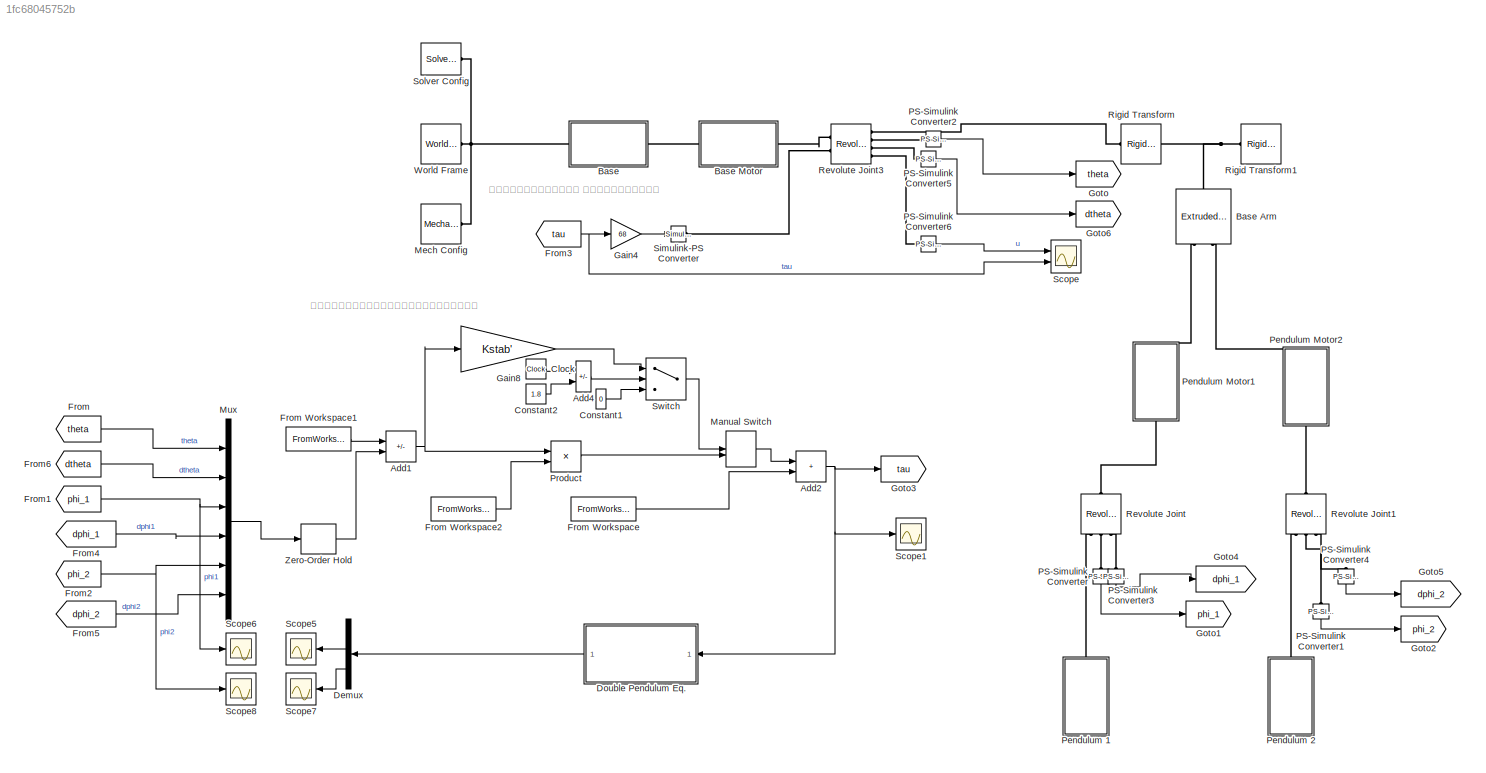
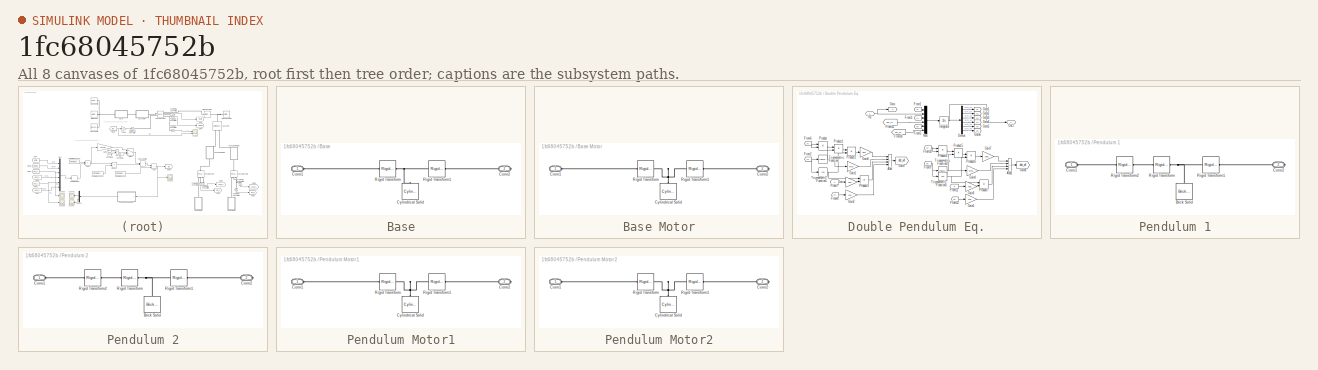
[diagram: thumbnail index - all 8 canvases of the model, root first then tree order]
MODEL slx_1fc68045752b
KIND model
CONFIG AbsTol = auto
CONFIG EnableMultiTasking = off
CONFIG FixedStep = 0.0001
CONFIG MaxStep = auto
CONFIG MinStep = auto
CONFIG RelTol = 1e-3
CONFIG SampleTimeConstraint = Unconstrained
CONFIG SolverName = FixedStepAuto
CONFIG StartTime = 0.0
CONFIG StopTime = 10
BLOCK [Sum] Add1
  IconShape = rectangular
  Inputs = +-
  Ports = [2, 1]
BLOCK [Sum] Add2
  IconShape = rectangular
  Ports = [2, 1]
BLOCK [Sum] Add4
  IconShape = rectangular
  Inputs = +-
  Ports = [2, 1]
BLOCK [SubSystem] Base
  Ports = [0, 0, 0, 0, 0, 1, 1]
BLOCK [Reference] Base Arm  REF=sm_lib/Body Elements/Extruded Solid
  NameLocation = right
  Ports = [0, 0, 0, 0, 0, 2, 1]
  SourceBlock = sm_lib/Body Elements/Extruded Solid
  SourceType = Extruded Solid
BLOCK [SubSystem] Base Motor
  Ports = [0, 0, 0, 0, 0, 1, 1]
BLOCK [PMIOPort] Base Motor/Conn1
  Side = Left
BLOCK [PMIOPort] Base Motor/Conn2
  Port = 2
  Side = Right
BLOCK [Reference] Base Motor/Cylindrical Solid  REF=sm_lib/Body Elements/Cylindrical Solid
  NameLocation = right
  Ports = [0, 0, 0, 0, 0, 0, 1]
  SourceBlock = sm_lib/Body Elements/Cylindrical Solid
  SourceType = Cylindrical Solid
BLOCK [Reference] Base Motor/Rigid Transform  REF=sm_lib/Frames and
Transforms/Rigid
Transform
  NameLocation = top
  Ports = [0, 0, 0, 0, 0, 1, 1]
  SourceBlock = sm_lib/Frames and\nTransforms/Rigid\nTransform
  SourceType = Rigid\nTransform
BLOCK [Reference] Base Motor/Rigid Transform1  REF=sm_lib/Frames and
Transforms/Rigid
Transform
  Ports = [0, 0, 0, 0, 0, 1, 1]
  SourceBlock = sm_lib/Frames and\nTransforms/Rigid\nTransform
  SourceType = Rigid\nTransform
BLOCK [PMIOPort] Base/Conn1
  Side = Left
BLOCK [PMIOPort] Base/Conn2
  Port = 2
  Side = Right
BLOCK [Reference] Base/Cylindrical Solid  REF=sm_lib/Body Elements/Cylindrical Solid
  NameLocation = right
  Ports = [0, 0, 0, 0, 0, 0, 1]
  SourceBlock = sm_lib/Body Elements/Cylindrical Solid
  SourceType = Cylindrical Solid
BLOCK [Reference] Base/Rigid Transform  REF=sm_lib/Frames and
Transforms/Rigid
Transform
  NameLocation = top
  Ports = [0, 0, 0, 0, 0, 1, 1]
  SourceBlock = sm_lib/Frames and\nTransforms/Rigid\nTransform
  SourceType = Rigid\nTransform
BLOCK [Reference] Base/Rigid Transform1  REF=sm_lib/Frames and
Transforms/Rigid
Transform
  Ports = [0, 0, 0, 0, 0, 1, 1]
  SourceBlock = sm_lib/Frames and\nTransforms/Rigid\nTransform
  SourceType = Rigid\nTransform
BLOCK [Clock] Clock
BLOCK [Constant] Constant1
  Value = 0
BLOCK [Constant] Constant2
  Value = 1.8
BLOCK [Demux] Demux
  NameLocation = top
  Outputs = 6
  Ports = [1, 6]
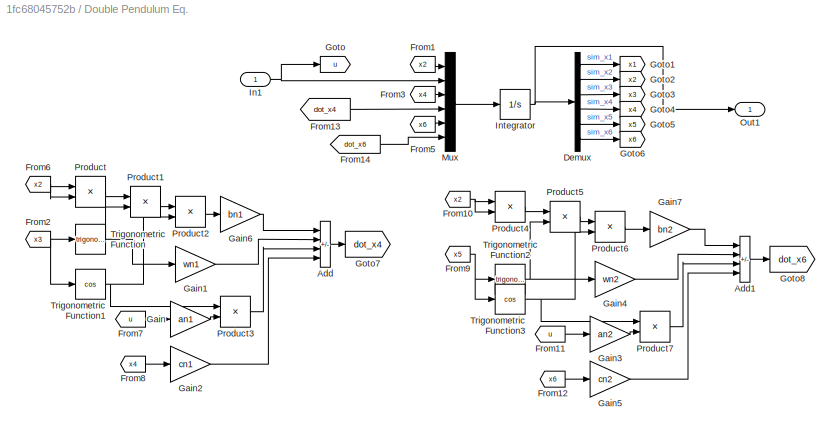
BLOCK [SubSystem] Double Pendulum Eq.
  NameLocation = top
  Ports = [1, 1]
BLOCK [Sum] Double Pendulum Eq./Add
  IconShape = rectangular
  Inputs = +---
  Ports = [4, 1]
BLOCK [Sum] Double Pendulum Eq./Add1
  IconShape = rectangular
  Inputs = +---
  Ports = [4, 1]
BLOCK [Demux] Double Pendulum Eq./Demux
  Outputs = 6
  Ports = [1, 6]
BLOCK [From] Double Pendulum Eq./From1
  GotoTag = x2
BLOCK [From] Double Pendulum Eq./From10
  GotoTag = x2
BLOCK [From] Double Pendulum Eq./From11
  GotoTag = u
BLOCK [From] Double Pendulum Eq./From12
  GotoTag = x6
BLOCK [From] Double Pendulum Eq./From13
  GotoTag = dot_x4
BLOCK [From] Double Pendulum Eq./From14
  GotoTag = dot_x6
BLOCK [From] Double Pendulum Eq./From2
  GotoTag = x3
BLOCK [From] Double Pendulum Eq./From3
  GotoTag = x4
BLOCK [From] Double Pendulum Eq./From5
  GotoTag = x6
BLOCK [From] Double Pendulum Eq./From6
  GotoTag = x2
BLOCK [From] Double Pendulum Eq./From7
  GotoTag = u
BLOCK [From] Double Pendulum Eq./From8
  GotoTag = x4
BLOCK [From] Double Pendulum Eq./From9
  GotoTag = x5
BLOCK [Gain] Double Pendulum Eq./Gain
  Gain = an1
BLOCK [Gain] Double Pendulum Eq./Gain1
  Gain = wn1
BLOCK [Gain] Double Pendulum Eq./Gain2
  Gain = cn1
BLOCK [Gain] Double Pendulum Eq./Gain3
  Gain = an2
BLOCK [Gain] Double Pendulum Eq./Gain4
  Gain = wn2
BLOCK [Gain] Double Pendulum Eq./Gain5
  Gain = cn2
BLOCK [Gain] Double Pendulum Eq./Gain6
  Gain = bn1
BLOCK [Gain] Double Pendulum Eq./Gain7
  Gain = bn2
BLOCK [Goto] Double Pendulum Eq./Goto
  GotoTag = u
BLOCK [Goto] Double Pendulum Eq./Goto1
  GotoTag = x1
BLOCK [Goto] Double Pendulum Eq./Goto2
  GotoTag = x2
BLOCK [Goto] Double Pendulum Eq./Goto3
  GotoTag = x3
BLOCK [Goto] Double Pendulum Eq./Goto4
  GotoTag = x4
BLOCK [Goto] Double Pendulum Eq./Goto5
  GotoTag = x5
BLOCK [Goto] Double Pendulum Eq./Goto6
  GotoTag = x6
BLOCK [Goto] Double Pendulum Eq./Goto7
  GotoTag = dot_x4
BLOCK [Goto] Double Pendulum Eq./Goto8
  GotoTag = dot_x6
BLOCK [Inport] Double Pendulum Eq./In1
BLOCK [Integrator] Double Pendulum Eq./Integrator
  InitialCondition = [0 0 0 0 0 0]
  Ports = [1, 1]
BLOCK [Mux] Double Pendulum Eq./Mux
  DisplayOption = bar
  Inputs = 6
  Ports = [6, 1]
BLOCK [Outport] Double Pendulum Eq./Out1
BLOCK [Product] Double Pendulum Eq./Product
  Ports = [2, 1]
BLOCK [Product] Double Pendulum Eq./Product1
  Ports = [2, 1]
BLOCK [Product] Double Pendulum Eq./Product2
  Ports = [2, 1]
BLOCK [Product] Double Pendulum Eq./Product3
  Ports = [2, 1]
BLOCK [Product] Double Pendulum Eq./Product4
  Ports = [2, 1]
BLOCK [Product] Double Pendulum Eq./Product5
  Ports = [2, 1]
BLOCK [Product] Double Pendulum Eq./Product6
  Ports = [2, 1]
BLOCK [Product] Double Pendulum Eq./Product7
  Ports = [2, 1]
BLOCK [Trigonometry] Double Pendulum Eq./Trigonometric Function
  Ports = [1, 1]
BLOCK [Trigonometry] Double Pendulum Eq./Trigonometric Function1
  Operator = cos
  Ports = [1, 1]
BLOCK [Trigonometry] Double Pendulum Eq./Trigonometric Function2
  Ports = [1, 1]
BLOCK [Trigonometry] Double Pendulum Eq./Trigonometric Function3
  Operator = cos
  Ports = [1, 1]
BLOCK [From] From
  GotoTag = theta
BLOCK [FromWorkspace] From Workspace
  SampleTime = 0.01
  VariableName = u_opt_ts
BLOCK [FromWorkspace] From Workspace1
  OutputAfterFinalValue = Holding final value
  SampleTime = dt
  VariableName = x_opt_ts
BLOCK [FromWorkspace] From Workspace2
  OutputAfterFinalValue = Holding final value
  SampleTime = dt
  VariableName = K_ts
BLOCK [From] From1
  GotoTag = phi_1
BLOCK [From] From2
  GotoTag = phi_2
BLOCK [From] From3
  GotoTag = tau
BLOCK [From] From4
  GotoTag = dphi_1
BLOCK [From] From5
  GotoTag = dphi_2
BLOCK [From] From6
  GotoTag = dtheta
BLOCK [Gain] Gain4
  Gain = 68
BLOCK [Gain] Gain8
  Gain = Kstab'
  Multiplication = Matrix(K*u) (u vector)
BLOCK [Goto] Goto
  GotoTag = theta
BLOCK [Goto] Goto1
  GotoTag = phi_1
BLOCK [Goto] Goto2
  GotoTag = phi_2
BLOCK [Goto] Goto3
  GotoTag = tau
BLOCK [Goto] Goto4
  GotoTag = dphi_1
BLOCK [Goto] Goto5
  GotoTag = dphi_2
BLOCK [Goto] Goto6
  GotoTag = dtheta
BLOCK [ManualSwitch] Manual Switch
  CurrentSetting = 0
BLOCK [Reference] Mech Config  REF=sm_lib/Utilities/Mechanism
Configuration
  Ports = [0, 0, 0, 0, 0, 0, 1]
  SourceBlock = sm_lib/Utilities/Mechanism\nConfiguration
  SourceType = Mechanism\nConfiguration
BLOCK [Mux] Mux
  DisplayOption = bar
  Inputs = 6
  Ports = [6, 1]
BLOCK [Reference] PS-Simulink Converter  REF=nesl_utility/PS-Simulink
Converter
  NameLocation = left
  Ports = [0, 1, 0, 0, 0, 1]
  SourceBlock = nesl_utility/PS-Simulink\nConverter
  SourceType = PS-Simulink\nConverter
BLOCK [Reference] PS-Simulink Converter1  REF=nesl_utility/PS-Simulink
Converter
  NameLocation = left
  Ports = [0, 1, 0, 0, 0, 1]
  SourceBlock = nesl_utility/PS-Simulink\nConverter
  SourceType = PS-Simulink\nConverter
BLOCK [Reference] PS-Simulink Converter2  REF=nesl_utility/PS-Simulink
Converter
  Ports = [0, 1, 0, 0, 0, 1]
  SourceBlock = nesl_utility/PS-Simulink\nConverter
  SourceType = PS-Simulink\nConverter
BLOCK [Reference] PS-Simulink Converter3  REF=nesl_utility/PS-Simulink
Converter
  NameLocation = left
  Ports = [0, 1, 0, 0, 0, 1]
  SourceBlock = nesl_utility/PS-Simulink\nConverter
  SourceType = PS-Simulink\nConverter
BLOCK [Reference] PS-Simulink Converter4  REF=nesl_utility/PS-Simulink
Converter
  NameLocation = left
  Ports = [0, 1, 0, 0, 0, 1]
  SourceBlock = nesl_utility/PS-Simulink\nConverter
  SourceType = PS-Simulink\nConverter
BLOCK [Reference] PS-Simulink Converter5  REF=nesl_utility/PS-Simulink
Converter
  Ports = [0, 1, 0, 0, 0, 1]
  SourceBlock = nesl_utility/PS-Simulink\nConverter
  SourceType = PS-Simulink\nConverter
BLOCK [Reference] PS-Simulink Converter6  REF=nesl_utility/PS-Simulink
Converter
  Ports = [0, 1, 0, 0, 0, 1]
  SourceBlock = nesl_utility/PS-Simulink\nConverter
  SourceType = PS-Simulink\nConverter
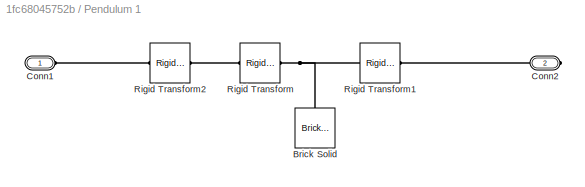
BLOCK [SubSystem] Pendulum 1
  NameLocation = left
  Ports = [0, 0, 0, 0, 0, 1, 1]
BLOCK [Reference] Pendulum 1/Brick Solid  REF=sm_lib/Body Elements/Brick Solid
  NameLocation = right
  Ports = [0, 0, 0, 0, 0, 0, 1]
  SourceBlock = sm_lib/Body Elements/Brick Solid
  SourceType = Brick Solid
BLOCK [PMIOPort] Pendulum 1/Conn1
  Side = Left
BLOCK [PMIOPort] Pendulum 1/Conn2
  Port = 2
  Side = Right
BLOCK [Reference] Pendulum 1/Rigid Transform  REF=sm_lib/Frames and
Transforms/Rigid
Transform
  NameLocation = top
  Ports = [0, 0, 0, 0, 0, 1, 1]
  SourceBlock = sm_lib/Frames and\nTransforms/Rigid\nTransform
  SourceType = Rigid\nTransform
BLOCK [Reference] Pendulum 1/Rigid Transform1  REF=sm_lib/Frames and
Transforms/Rigid
Transform
  Ports = [0, 0, 0, 0, 0, 1, 1]
  SourceBlock = sm_lib/Frames and\nTransforms/Rigid\nTransform
  SourceType = Rigid\nTransform
BLOCK [Reference] Pendulum 1/Rigid Transform2  REF=sm_lib/Frames and
Transforms/Rigid
Transform
  NameLocation = top
  Ports = [0, 0, 0, 0, 0, 1, 1]
  SourceBlock = sm_lib/Frames and\nTransforms/Rigid\nTransform
  SourceType = Rigid\nTransform
BLOCK [SubSystem] Pendulum 2
  NameLocation = left
  Ports = [0, 0, 0, 0, 0, 1, 1]
BLOCK [Reference] Pendulum 2/Brick Solid  REF=sm_lib/Body Elements/Brick Solid
  NameLocation = right
  Ports = [0, 0, 0, 0, 0, 0, 1]
  SourceBlock = sm_lib/Body Elements/Brick Solid
  SourceType = Brick Solid
BLOCK [PMIOPort] Pendulum 2/Conn1
  Side = Left
BLOCK [PMIOPort] Pendulum 2/Conn2
  Port = 2
  Side = Right
BLOCK [Reference] Pendulum 2/Rigid Transform  REF=sm_lib/Frames and
Transforms/Rigid
Transform
  NameLocation = top
  Ports = [0, 0, 0, 0, 0, 1, 1]
  SourceBlock = sm_lib/Frames and\nTransforms/Rigid\nTransform
  SourceType = Rigid\nTransform
BLOCK [Reference] Pendulum 2/Rigid Transform1  REF=sm_lib/Frames and
Transforms/Rigid
Transform
  Ports = [0, 0, 0, 0, 0, 1, 1]
  SourceBlock = sm_lib/Frames and\nTransforms/Rigid\nTransform
  SourceType = Rigid\nTransform
BLOCK [Reference] Pendulum 2/Rigid Transform2  REF=sm_lib/Frames and
Transforms/Rigid
Transform
  NameLocation = top
  Ports = [0, 0, 0, 0, 0, 1, 1]
  SourceBlock = sm_lib/Frames and\nTransforms/Rigid\nTransform
  SourceType = Rigid\nTransform
BLOCK [SubSystem] Pendulum Motor1
  NameLocation = left
  Ports = [0, 0, 0, 0, 0, 1, 1]
BLOCK [PMIOPort] Pendulum Motor1/Conn1
  Side = Left
BLOCK [PMIOPort] Pendulum Motor1/Conn2
  Port = 2
  Side = Right
BLOCK [Reference] Pendulum Motor1/Cylindrical Solid  REF=sm_lib/Body Elements/Cylindrical Solid
  NameLocation = right
  Ports = [0, 0, 0, 0, 0, 0, 1]
  SourceBlock = sm_lib/Body Elements/Cylindrical Solid
  SourceType = Cylindrical Solid
BLOCK [Reference] Pendulum Motor1/Rigid Transform  REF=sm_lib/Frames and
Transforms/Rigid
Transform
  NameLocation = top
  Ports = [0, 0, 0, 0, 0, 1, 1]
  SourceBlock = sm_lib/Frames and\nTransforms/Rigid\nTransform
  SourceType = Rigid\nTransform
BLOCK [Reference] Pendulum Motor1/Rigid Transform1  REF=sm_lib/Frames and
Transforms/Rigid
Transform
  Ports = [0, 0, 0, 0, 0, 1, 1]
  SourceBlock = sm_lib/Frames and\nTransforms/Rigid\nTransform
  SourceType = Rigid\nTransform
BLOCK [SubSystem] Pendulum Motor2
  NameLocation = left
  Ports = [0, 0, 0, 0, 0, 1, 1]
BLOCK [PMIOPort] Pendulum Motor2/Conn1
  Side = Left
BLOCK [PMIOPort] Pendulum Motor2/Conn2
  Port = 2
  Side = Right
BLOCK [Reference] Pendulum Motor2/Cylindrical Solid  REF=sm_lib/Body Elements/Cylindrical Solid
  NameLocation = right
  Ports = [0, 0, 0, 0, 0, 0, 1]
  SourceBlock = sm_lib/Body Elements/Cylindrical Solid
  SourceType = Cylindrical Solid
BLOCK [Reference] Pendulum Motor2/Rigid Transform  REF=sm_lib/Frames and
Transforms/Rigid
Transform
  NameLocation = top
  Ports = [0, 0, 0, 0, 0, 1, 1]
  SourceBlock = sm_lib/Frames and\nTransforms/Rigid\nTransform
  SourceType = Rigid\nTransform
BLOCK [Reference] Pendulum Motor2/Rigid Transform1  REF=sm_lib/Frames and
Transforms/Rigid
Transform
  Ports = [0, 0, 0, 0, 0, 1, 1]
  SourceBlock = sm_lib/Frames and\nTransforms/Rigid\nTransform
  SourceType = Rigid\nTransform
BLOCK [Product] Product
  Multiplication = Matrix(*)
  Ports = [2, 1]
BLOCK [Reference] Revolute Joint  REF=sm_lib/Joints/Revolute Joint
  NameLocation = left
  Ports = [0, 0, 0, 0, 0, 1, 3]
  SourceBlock = sm_lib/Joints/Revolute Joint
  SourceType = Revolute Joint
BLOCK [Reference] Revolute Joint1  REF=sm_lib/Joints/Revolute Joint
  NameLocation = left
  Ports = [0, 0, 0, 0, 0, 1, 3]
  SourceBlock = sm_lib/Joints/Revolute Joint
  SourceType = Revolute Joint
BLOCK [Reference] Revolute Joint3  REF=sm_lib/Joints/Revolute Joint
  Ports = [0, 0, 0, 0, 0, 2, 4]
  SourceBlock = sm_lib/Joints/Revolute Joint
  SourceType = Revolute Joint
BLOCK [Reference] Rigid Transform  REF=sm_lib/Frames and
Transforms/Rigid
Transform
  NameLocation = top
  Ports = [0, 0, 0, 0, 0, 1, 1]
  SourceBlock = sm_lib/Frames and\nTransforms/Rigid\nTransform
  SourceType = Rigid\nTransform
BLOCK [Reference] Rigid Transform1  REF=sm_lib/Frames and
Transforms/Rigid
Transform
  Ports = [0, 0, 0, 0, 0, 1, 1]
  SourceBlock = sm_lib/Frames and\nTransforms/Rigid\nTransform
  SourceType = Rigid\nTransform
BLOCK [Scope] Scope
  Floating = off
  NumInputPorts = 2
  Ports = [2]
  ScopeSpecificationString = Simulink.scopes.TimeScopeBlockCfg('CurrentConfiguration', extmgr.ConfigurationSet(extmgr.Configuration('Core','General UI',true),extmgr.Configuration('Core','Source UI',true),extmgr.Configuration('Sources','WiredSimulink',true,'DataLoggingVariableName','ScopeData1'),extmgr.Configuration('Visuals','Time Domain',true,'SerializedDisplays',{struct('MinYLimReal','-66.46884','MaxYLimReal','50.92059','YL...<+1470ch>
BLOCK [Scope] Scope1
  Floating = off
  NumInputPorts = 1
  Ports = [1]
  ScopeSpecificationString = Simulink.scopes.TimeScopeBlockCfg('CurrentConfiguration', extmgr.ConfigurationSet(extmgr.Configuration('Core','General UI',true),extmgr.Configuration('Core','Source UI',true),extmgr.Configuration('Sources','WiredSimulink',true,'DataLoggingVariableName','ScopeData1'),extmgr.Configuration('Visuals','Time Domain',true,'SerializedDisplays',{struct('MinYLimReal','-51.69932','MaxYLimReal','45.54576','YL...<+1569ch>
BLOCK [Scope] Scope5
  Floating = off
  NameLocation = top
  NumInputPorts = 1
  Ports = [1]
  ScopeSpecificationString = Simulink.scopes.TimeScopeBlockCfg('CurrentConfiguration', extmgr.ConfigurationSet(extmgr.Configuration('Core','General UI',true),extmgr.Configuration('Core','Source UI',true),extmgr.Configuration('Sources','WiredSimulink',true,'DataLoggingVariableName','ScopeData1'),extmgr.Configuration('Visuals','Time Domain',true,'SerializedDisplays',{struct('MinYLimReal','-3.54029','MaxYLimReal','3.85831','YLab...<+1491ch>
BLOCK [Scope] Scope6
  Floating = off
  NumInputPorts = 1
  Ports = [1]
  ScopeSpecificationString = Simulink.scopes.TimeScopeBlockCfg('CurrentConfiguration', extmgr.ConfigurationSet(extmgr.Configuration('Core','General UI',true),extmgr.Configuration('Core','Source UI',true),extmgr.Configuration('Sources','WiredSimulink',true,'DataLoggingVariableName','ScopeData2'),extmgr.Configuration('Visuals','Time Domain',true,'SerializedDisplays',{struct('MinYLimReal','-3.2356','MaxYLimReal','3.80879','YLabe...<+1486ch>
BLOCK [Scope] Scope7
  Floating = off
  NameLocation = top
  NumInputPorts = 1
  Ports = [1]
  ScopeSpecificationString = Simulink.scopes.TimeScopeBlockCfg('CurrentConfiguration', extmgr.ConfigurationSet(extmgr.Configuration('Core','General UI',true),extmgr.Configuration('Core','Source UI',true),extmgr.Configuration('Sources','WiredSimulink',true,'DataLoggingVariableName','ScopeData1'),extmgr.Configuration('Visuals','Time Domain',true,'SerializedDisplays',{struct('MinYLimReal','-3.26727','MaxYLimReal','3.85594','YLab...<+1491ch>
BLOCK [Scope] Scope8
  Floating = off
  NumInputPorts = 1
  Ports = [1]
  ScopeSpecificationString = Simulink.scopes.TimeScopeBlockCfg('CurrentConfiguration', extmgr.ConfigurationSet(extmgr.Configuration('Core','General UI',true),extmgr.Configuration('Core','Source UI',true),extmgr.Configuration('Sources','WiredSimulink',true,'DataLoggingVariableName','ScopeData2'),extmgr.Configuration('Visuals','Time Domain',true,'SerializedDisplays',{struct('MinYLimReal','-3.24544','MaxYLimReal','3.92624','YLab...<+1488ch>
BLOCK [Reference] Simulink-PS Converter  REF=nesl_utility/Simulink-PS
Converter
  Ports = [1, 0, 0, 0, 0, 0, 1]
  SourceBlock = nesl_utility/Simulink-PS\nConverter
  SourceType = Simulink-PS\nConverter
BLOCK [Reference] Solver Config  REF=nesl_utility/Solver
Configuration
  Ports = [0, 0, 0, 0, 0, 0, 1]
  SourceBlock = nesl_utility/Solver\nConfiguration
  SourceType = Solver\nConfiguration
BLOCK [Switch] Switch
  Criteria = u2 > Threshold
  InputSameDT = off
  SaturateOnIntegerOverflow = off
BLOCK [Reference] World Frame  REF=sm_lib/Frames and
Transforms/World Frame
  Ports = [0, 0, 0, 0, 0, 0, 1]
  SourceBlock = sm_lib/Frames and\nTransforms/World Frame
  SourceType = World Frame
BLOCK [ZeroOrderHold] Zero-Order Hold
  SampleTime = dt
ANNOTATION (root): アーム角加速度≒印加トルク と調整するためのゲイン
ANNOTATION (root): 振り上げ後に固定のゲインを使う場合。動作確認用。
NET Add1:1 -> Gain8:1, Product:1
NET Add2:1 -> Double Pendulum Eq.:1, Goto3:1, Scope1:1
LINE Add4:1 -> Switch:2
LINE Clock:1 -> Add4:1
LINE Constant1:1 -> Switch:3
LINE Constant2:1 -> Add4:2
LINE Demux:3 -> Scope5:1
LINE Demux:5 -> Scope7:1
LINE Double Pendulum Eq./Add1:1 -> Double Pendulum Eq./Goto8:1
LINE Double Pendulum Eq./Add:1 -> Double Pendulum Eq./Goto7:1
LINE Double Pendulum Eq./Demux:1 -> Double Pendulum Eq./Goto1:1
LINE Double Pendulum Eq./Demux:2 -> Double Pendulum Eq./Goto2:1
LINE Double Pendulum Eq./Demux:3 -> Double Pendulum Eq./Goto3:1
LINE Double Pendulum Eq./Demux:4 -> Double Pendulum Eq./Goto4:1
LINE Double Pendulum Eq./Demux:5 -> Double Pendulum Eq./Goto5:1
LINE Double Pendulum Eq./Demux:6 -> Double Pendulum Eq./Goto6:1
NET Double Pendulum Eq./From10:1 -> Double Pendulum Eq./Product4:1, Double Pendulum Eq./Product4:2
LINE Double Pendulum Eq./From11:1 -> Double Pendulum Eq./Gain3:1
LINE Double Pendulum Eq./From12:1 -> Double Pendulum Eq./Gain5:1
LINE Double Pendulum Eq./From13:1 -> Double Pendulum Eq./Mux:4
LINE Double Pendulum Eq./From14:1 -> Double Pendulum Eq./Mux:6
LINE Double Pendulum Eq./From1:1 -> Double Pendulum Eq./Mux:1
NET Double Pendulum Eq./From2:1 -> Double Pendulum Eq./Trigonometric Function1:1, Double Pendulum Eq./Trigonometric Function:1
LINE Double Pendulum Eq./From3:1 -> Double Pendulum Eq./Mux:3
LINE Double Pendulum Eq./From5:1 -> Double Pendulum Eq./Mux:5
NET Double Pendulum Eq./From6:1 -> Double Pendulum Eq./Product:1, Double Pendulum Eq./Product:2
LINE Double Pendulum Eq./From7:1 -> Double Pendulum Eq./Gain:1
LINE Double Pendulum Eq./From8:1 -> Double Pendulum Eq./Gain2:1
NET Double Pendulum Eq./From9:1 -> Double Pendulum Eq./Trigonometric Function2:1, Double Pendulum Eq./Trigonometric Function3:1
LINE Double Pendulum Eq./Gain1:1 -> Double Pendulum Eq./Add:2
LINE Double Pendulum Eq./Gain2:1 -> Double Pendulum Eq./Add:4
LINE Double Pendulum Eq./Gain3:1 -> Double Pendulum Eq./Product7:2
LINE Double Pendulum Eq./Gain4:1 -> Double Pendulum Eq./Add1:2
LINE Double Pendulum Eq./Gain5:1 -> Double Pendulum Eq./Add1:4
LINE Double Pendulum Eq./Gain6:1 -> Double Pendulum Eq./Add:1
LINE Double Pendulum Eq./Gain7:1 -> Double Pendulum Eq./Add1:1
LINE Double Pendulum Eq./Gain:1 -> Double Pendulum Eq./Product3:2
NET Double Pendulum Eq./In1:1 -> Double Pendulum Eq./Goto:1, Double Pendulum Eq./Mux:2
NET Double Pendulum Eq./Integrator:1 -> Double Pendulum Eq./Demux:1, Double Pendulum Eq./Out1:1
LINE Double Pendulum Eq./Mux:1 -> Double Pendulum Eq./Integrator:1
LINE Double Pendulum Eq./Product1:1 -> Double Pendulum Eq./Product2:1
LINE Double Pendulum Eq./Product2:1 -> Double Pendulum Eq./Gain6:1
LINE Double Pendulum Eq./Product3:1 -> Double Pendulum Eq./Add:3
LINE Double Pendulum Eq./Product4:1 -> Double Pendulum Eq./Product5:1
LINE Double Pendulum Eq./Product5:1 -> Double Pendulum Eq./Product6:1
LINE Double Pendulum Eq./Product6:1 -> Double Pendulum Eq./Gain7:1
LINE Double Pendulum Eq./Product7:1 -> Double Pendulum Eq./Add1:3
LINE Double Pendulum Eq./Product:1 -> Double Pendulum Eq./Product1:1
NET Double Pendulum Eq./Trigonometric Function1:1 -> Double Pendulum Eq./Product2:2, Double Pendulum Eq./Product3:1
NET Double Pendulum Eq./Trigonometric Function2:1 -> Double Pendulum Eq./Gain4:1, Double Pendulum Eq./Product5:2
NET Double Pendulum Eq./Trigonometric Function3:1 -> Double Pendulum Eq./Product6:2, Double Pendulum Eq./Product7:1
NET Double Pendulum Eq./Trigonometric Function:1 -> Double Pendulum Eq./Gain1:1, Double Pendulum Eq./Product1:2
LINE Double Pendulum Eq.:1 -> Demux:1
LINE From Workspace1:1 -> Add1:1
LINE From Workspace2:1 -> Product:2
LINE From Workspace:1 -> Add2:2
NET From1:1 -> Mux:3, Scope6:1
NET From2:1 -> Mux:5, Scope8:1
NET From3:1 -> Gain4:1, Scope:2
LINE From4:1 -> Mux:4
LINE From5:1 -> Mux:6
LINE From6:1 -> Mux:2
LINE From:1 -> Mux:1
LINE Gain4:1 -> Simulink-PS Converter:1
LINE Gain8:1 -> Switch:1
LINE Manual Switch:1 -> Add2:1
LINE Mux:1 -> Zero-Order Hold:1
LINE PS-Simulink Converter1:1 -> Goto2:1
LINE PS-Simulink Converter2:1 -> Goto:1
LINE PS-Simulink Converter3:1 -> Goto4:1
LINE PS-Simulink Converter4:1 -> Goto5:1
LINE PS-Simulink Converter5:1 -> Goto6:1
LINE PS-Simulink Converter6:1 -> Scope:1
LINE PS-Simulink Converter:1 -> Goto1:1
LINE Product:1 -> Manual Switch:2
LINE Switch:1 -> Manual Switch:1
LINE Zero-Order Hold:1 -> Add1:2
PLINE Base Arm:LConn1 -- Pendulum Motor1:LConn1
PLINE Base Arm:LConn2 -- Pendulum Motor2:LConn1
PNET net1: Base Arm:RConn1 -- Rigid Transform1:LConn1 -- Rigid Transform:LConn1
PLINE Base Motor/Conn1:RConn1 -- Base Motor/Rigid Transform:RConn1
PLINE Base Motor/Conn2:RConn1 -- Base Motor/Rigid Transform1:RConn1
PNET net2: Base Motor/Cylindrical Solid:RConn1 -- Base Motor/Rigid Transform1:LConn1 -- Base Motor/Rigid Transform:LConn1
PLINE Base Motor:LConn1 -- Base:RConn1
PLINE Base Motor:RConn1 -- Revolute Joint3:LConn1
PLINE Base/Conn1:RConn1 -- Base/Rigid Transform:RConn1
PLINE Base/Conn2:RConn1 -- Base/Rigid Transform1:RConn1
PNET net3: Base/Cylindrical Solid:RConn1 -- Base/Rigid Transform1:LConn1 -- Base/Rigid Transform:LConn1
PNET net4: Base:LConn1 -- Mech Config:RConn1 -- Solver Config:RConn1 -- World Frame:RConn1
PLINE PS-Simulink Converter1:LConn1 -- Revolute Joint1:RConn2
PLINE PS-Simulink Converter2:LConn1 -- Revolute Joint3:RConn2
PLINE PS-Simulink Converter3:LConn1 -- Revolute Joint:RConn3
PLINE PS-Simulink Converter4:LConn1 -- Revolute Joint1:RConn3
PLINE PS-Simulink Converter5:LConn1 -- Revolute Joint3:RConn3
PLINE PS-Simulink Converter6:LConn1 -- Revolute Joint3:RConn4
PLINE PS-Simulink Converter:LConn1 -- Revolute Joint:RConn2
PNET net5: Pendulum 1/Brick Solid:RConn1 -- Pendulum 1/Rigid Transform1:LConn1 -- Pendulum 1/Rigid Transform:LConn1
PLINE Pendulum 1/Conn1:RConn1 -- Pendulum 1/Rigid Transform2:RConn1
PLINE Pendulum 1/Conn2:RConn1 -- Pendulum 1/Rigid Transform1:RConn1
PLINE Pendulum 1/Rigid Transform2:LConn1 -- Pendulum 1/Rigid Transform:RConn1
PLINE Pendulum 1:LConn1 -- Revolute Joint:RConn1
PNET net6: Pendulum 2/Brick Solid:RConn1 -- Pendulum 2/Rigid Transform1:LConn1 -- Pendulum 2/Rigid Transform:LConn1
PLINE Pendulum 2/Conn1:RConn1 -- Pendulum 2/Rigid Transform2:RConn1
PLINE Pendulum 2/Conn2:RConn1 -- Pendulum 2/Rigid Transform1:RConn1
PLINE Pendulum 2/Rigid Transform2:LConn1 -- Pendulum 2/Rigid Transform:RConn1
PLINE Pendulum 2:LConn1 -- Revolute Joint1:RConn1
PLINE Pendulum Motor1/Conn1:RConn1 -- Pendulum Motor1/Rigid Transform:RConn1
PLINE Pendulum Motor1/Conn2:RConn1 -- Pendulum Motor1/Rigid Transform1:RConn1
PNET net7: Pendulum Motor1/Cylindrical Solid:RConn1 -- Pendulum Motor1/Rigid Transform1:LConn1 -- Pendulum Motor1/Rigid Transform:LConn1
PLINE Pendulum Motor1:RConn1 -- Revolute Joint:LConn1
PLINE Pendulum Motor2/Conn1:RConn1 -- Pendulum Motor2/Rigid Transform:RConn1
PLINE Pendulum Motor2/Conn2:RConn1 -- Pendulum Motor2/Rigid Transform1:RConn1
PNET net8: Pendulum Motor2/Cylindrical Solid:RConn1 -- Pendulum Motor2/Rigid Transform1:LConn1 -- Pendulum Motor2/Rigid Transform:LConn1
PLINE Pendulum Motor2:RConn1 -- Revolute Joint1:LConn1
PLINE Revolute Joint3:LConn2 -- Simulink-PS Converter:RConn1
PLINE Revolute Joint3:RConn1 -- Rigid Transform:RConn1
note: NET lines group one-source signal fan-out (src -> all destinations, sorted); 1:1 wires keep LINE; PNET lines group multi-terminal physical nets as a canonical sorted terminal list (undirected conserving connections); 2-terminal nets keep the pairwise PLINE form
